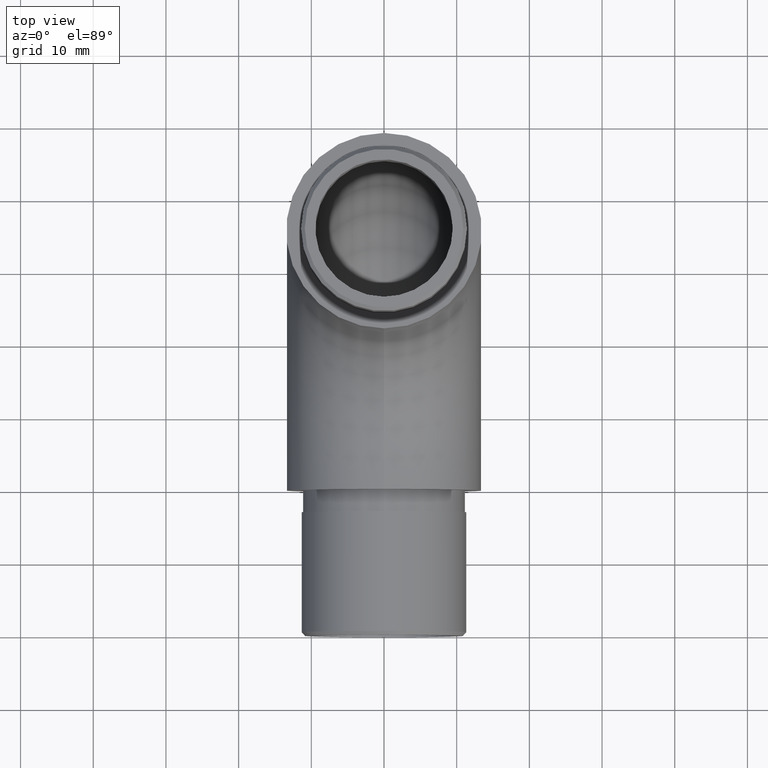
[diagram: clean part render]
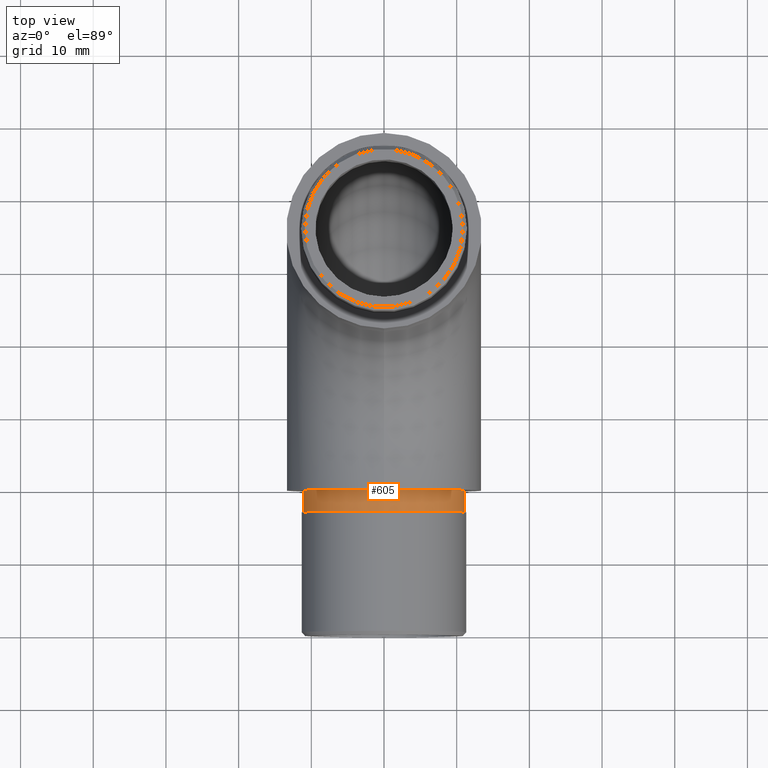
[diagram: same view with one face highlighted and labeled with its STEP entity id]
A machine part, top view. The second image highlights one B-rep face of the part: STEP entity #605.
In plain terms, the highlighted cylindrical surface (bore or boss wall) has radius 11.2 mm, axis along (-0, 1, -0).
Its self-contained STEP definition (entity closure, byte-faithful):
#402 = VERTEX_POINT ( 'NONE', #3713 ) ;
#605 = ADVANCED_FACE ( 'NONE', ( #8676, #12265 ), #727, .T. ) ;
#727 = CYLINDRICAL_SURFACE ( 'NONE', #8632, 11.20000000000000100 ) ;
#729 = DIRECTION ( 'NONE',  ( 0.0000000000000000000, -1.000000000000000000, 0.0000000000000000000 ) ) ;
#1696 = CARTESIAN_POINT ( 'NONE',  ( 0.0000000000000000000, -3.000000000000000000, 13.45000000000000300 ) ) ;
#2099 = ORIENTED_EDGE ( 'NONE', *, *, #7116, .T. ) ;
#2386 = ORIENTED_EDGE ( 'NONE', *, *, #3312, .F. ) ;
#2590 = CIRCLE ( 'NONE', #11991, 11.20000000000000100 ) ;
#3312 = EDGE_CURVE ( 'NONE', #3988, #3988, #10446, .T. ) ;
#3713 = CARTESIAN_POINT ( 'NONE',  ( 0.0000000000000000000, 0.0000000000000000000, 24.65000000000000600 ) ) ;
#3988 = VERTEX_POINT ( 'NONE', #6773 ) ;
#4478 = DIRECTION ( 'NONE',  ( -0.0000000000000000000, 1.000000000000000000, -0.0000000000000000000 ) ) ;
#5356 = AXIS2_PLACEMENT_3D ( 'NONE', #1696, #729, #8656 ) ;
#6773 = CARTESIAN_POINT ( 'NONE',  ( 0.0000000000000000000, -3.000000000000000000, 2.250000000000001800 ) ) ;
#7116 = EDGE_CURVE ( 'NONE', #402, #402, #2590, .T. ) ;
#7491 = CARTESIAN_POINT ( 'NONE',  ( 0.0000000000000000000, -3.000000000000000000, 13.45000000000000300 ) ) ;
#8632 = AXIS2_PLACEMENT_3D ( 'NONE', #7491, #4478, #10530 ) ;
#8656 = DIRECTION ( 'NONE',  ( 0.0000000000000000000, 0.0000000000000000000, -1.000000000000000000 ) ) ;
#8676 = FACE_OUTER_BOUND ( 'NONE', #9014, .T. ) ;
#9014 = EDGE_LOOP ( 'NONE', ( #2386 ) ) ;
#10446 = CIRCLE ( 'NONE', #5356, 11.20000000000000100 ) ;
#10530 = DIRECTION ( 'NONE',  ( 0.0000000000000000000, 0.0000000000000000000, 1.000000000000000000 ) ) ;
#11145 = DIRECTION ( 'NONE',  ( 0.0000000000000000000, 0.0000000000000000000, 1.000000000000000000 ) ) ;
#11278 = CARTESIAN_POINT ( 'NONE',  ( 0.0000000000000000000, 0.0000000000000000000, 13.45000000000000300 ) ) ;
#11991 = AXIS2_PLACEMENT_3D ( 'NONE', #11278, #12133, #11145 ) ;
#12133 = DIRECTION ( 'NONE',  ( -0.0000000000000000000, -1.000000000000000000, -0.0000000000000000000 ) ) ;
#12265 = FACE_OUTER_BOUND ( 'NONE', #12920, .T. ) ;
#12920 = EDGE_LOOP ( 'NONE', ( #2099 ) ) ;